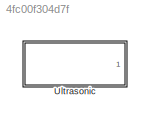
MODEL slx_4fc00f304d7f
KIND model
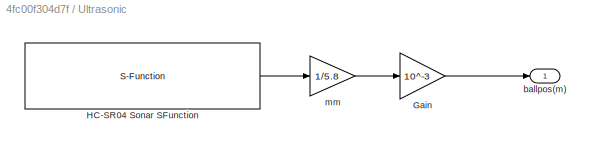
BLOCK [SubSystem] Ultrasonic
  FunctionWithSeparateData = off
  MaskHideContents = off
  MinAlgLoopOccurrences = off
  Opaque = off
  Ports = [0, 1]
  PropExecContextOutsideSubsystem = off
  RTWSystemCode = Auto
  RequestExecContextInheritance = off
BLOCK [Gain] Ultrasonic/Gain
  Gain = 10^-3
  OutDataTypeStr = Inherit: Inherit via internal rule
  ParamDataTypeStr = Inherit: Inherit via internal rule
  SaturateOnIntegerOverflow = off
BLOCK [S-Function] Ultrasonic/HC-SR04 Sonar SFunction
  CopyFcn = set_param(gcbh,'LinkStatus','none')
  EnableBusSupport = off
  FunctionName = sf_HCSR04_Carion
  InitFcn = try, set_param(gcb,'FunctionName','sf_HCSR04_Carion'), end
  OpenFcn = sfunctionwizard(gcbh)
  Ports = [0, 1]
  PreSaveFcn = try, set_param(gcb,'FunctionName','sf_HCSR04_Carion'), end
  SFunctionModules = sf_HCSR04_Carion_wrapper
BLOCK [Outport] Ultrasonic/ballpos(m)
  IconDisplay = Port number
BLOCK [Gain] Ultrasonic/mm
  Gain = 1/5.8
  OutDataTypeStr = Inherit: Inherit via internal rule
  ParamDataTypeStr = Inherit: Inherit via internal rule
  SaturateOnIntegerOverflow = off
LINE Ultrasonic/Gain:1 -> Ultrasonic/ballpos(m):1
LINE Ultrasonic/HC-SR04 Sonar SFunction:1 -> Ultrasonic/mm:1
LINE Ultrasonic/mm:1 -> Ultrasonic/Gain:1
